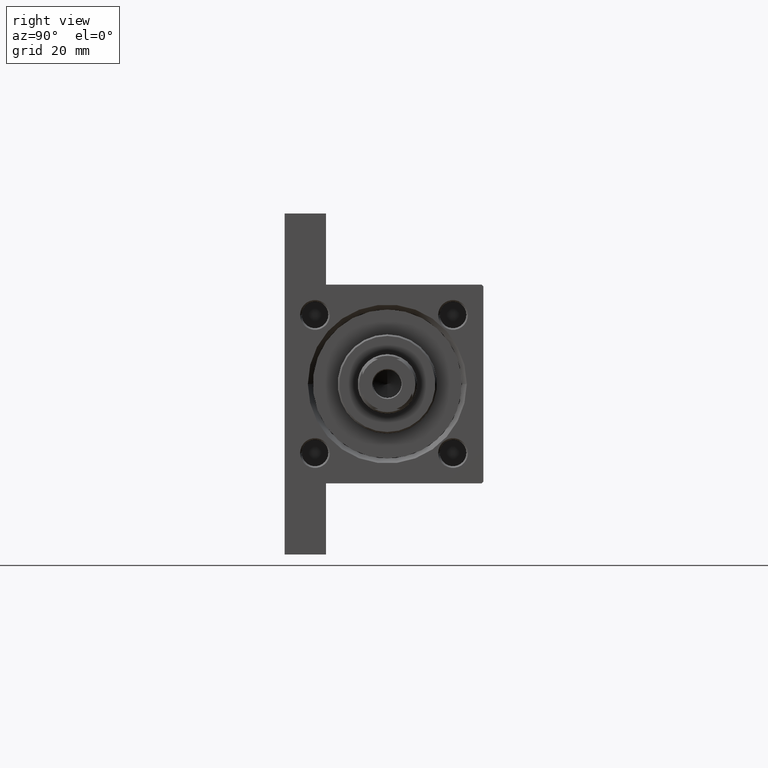
[diagram: clean part render]
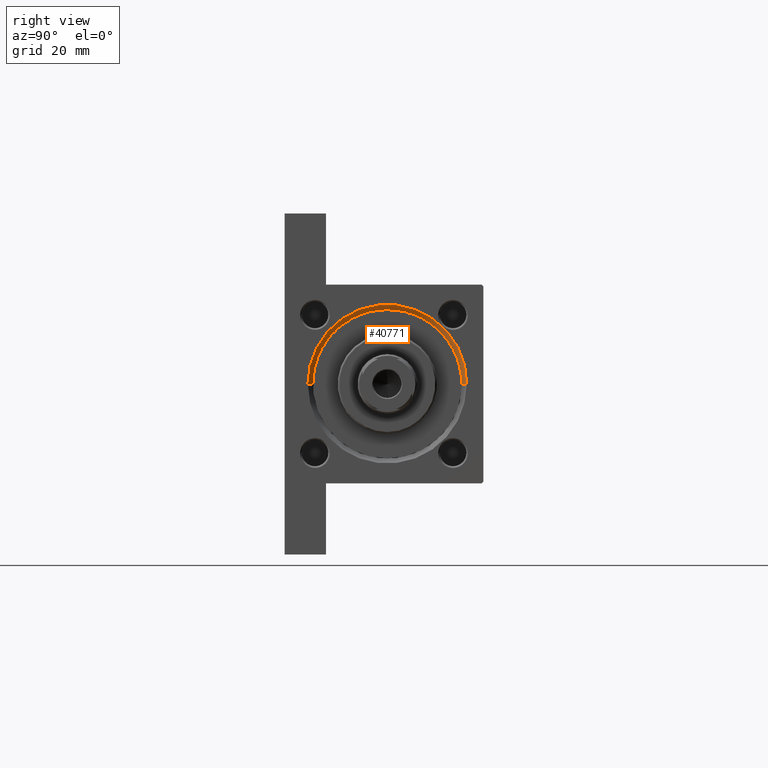
[diagram: same view with one face highlighted and labeled with its STEP entity id]
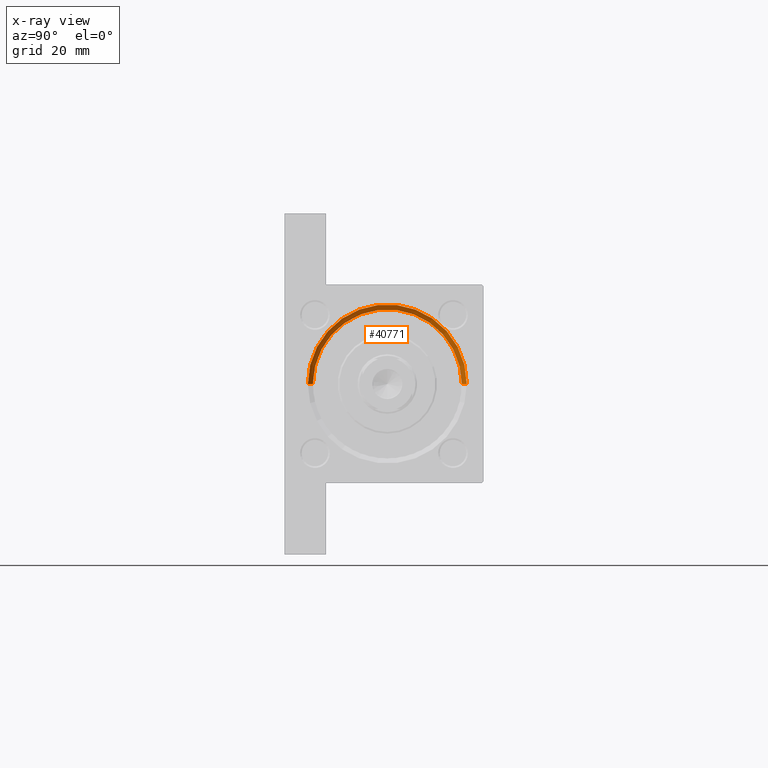
[diagram: x-ray of the same camera — body ghosted, the highlighted face saturated]
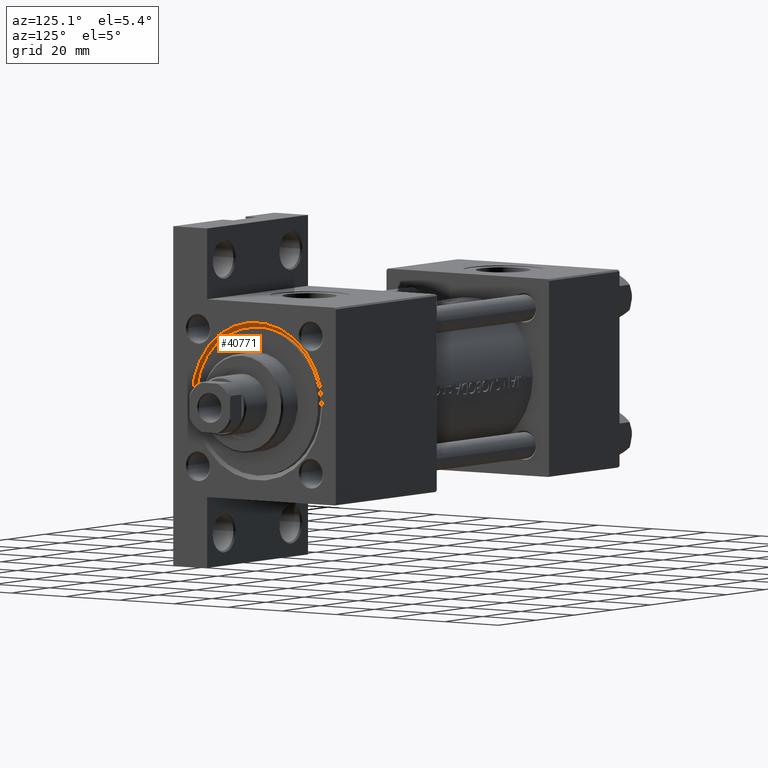
[diagram: same view with one face highlighted and labeled with its STEP entity id]
A machine part, right view. The second image highlights one B-rep face of the part: STEP entity #40771.
The next image is the same camera in x-ray: the body ghosted, the highlighted face saturated — about 0% of this face is hidden behind the body in this view.
A second angle (auxiliary view) of the same face is appended — the face is thin or edge-on in the first view.
In plain terms, the highlighted conical surface has half-angle 45 deg.
Its self-contained STEP definition (entity closure, byte-faithful):
#240 = EDGE_LOOP ( 'NONE', ( #13842, #23593, #32434, #40875 ) ) ;
#786 = CARTESIAN_POINT ( 'NONE',  ( 149.0000000000000000, 0.000000000000000000, -23.00000000000000355 ) ) ;
#3054 = DIRECTION ( 'NONE',  ( 1.000000000000000000, 0.000000000000000000, 0.000000000000000000 ) ) ;
#3774 = DIRECTION ( 'NONE',  ( 0.7071067811865524577, 0.000000000000000000, -0.7071067811865426878 ) ) ;
#6086 = VECTOR ( 'NONE', #3774, 1000.000000000000000 ) ;
#7476 = CARTESIAN_POINT ( 'NONE',  ( 147.4999999999999716, 0.000000000000000000, -21.49999999999999645 ) ) ;
#7496 = CARTESIAN_POINT ( 'NONE',  ( 147.4999999999999716, 2.755455298081545172E-15, 23.50000000000001066 ) ) ;
#11749 = EDGE_CURVE ( 'NONE', #27604, #27494, #43042, .T. ) ;
#12311 = CARTESIAN_POINT ( 'NONE',  ( 147.4999999999999716, 2.755455298081545172E-15, 23.50000000000001066 ) ) ;
#13842 = ORIENTED_EDGE ( 'NONE', *, *, #11749, .F. ) ;
#16446 = EDGE_CURVE ( 'NONE', #27604, #39741, #41748, .T. ) ;
#17125 = CARTESIAN_POINT ( 'NONE',  ( 149.0000000000000000, 2.939152317953649472E-15, 25.00000000000001776 ) ) ;
#17756 = VECTOR ( 'NONE', #22536, 1000.000000000000000 ) ;
#18105 = DIRECTION ( 'NONE',  ( 0.000000000000000000, 0.000000000000000000, -1.000000000000000000 ) ) ;
#21538 = CARTESIAN_POINT ( 'NONE',  ( 147.4999999999999716, 0.000000000000000000, 1.000000000000007772 ) ) ;
#22336 = DIRECTION ( 'NONE',  ( 1.000000000000000000, 0.000000000000000000, 0.000000000000000000 ) ) ;
#22536 = DIRECTION ( 'NONE',  ( 0.7071067811865524577, 8.659560562354873694E-17, 0.7071067811865426878 ) ) ;
#22989 = VERTEX_POINT ( 'NONE', #786 ) ;
#23593 = ORIENTED_EDGE ( 'NONE', *, *, #16446, .T. ) ;
#26203 = LINE ( 'NONE', #7476, #6086 ) ;
#27001 = DIRECTION ( 'NONE',  ( 0.000000000000000000, 0.000000000000000000, 1.000000000000000000 ) ) ;
#27494 = VERTEX_POINT ( 'NONE', #30059 ) ;
#27604 = VERTEX_POINT ( 'NONE', #12311 ) ;
#30059 = CARTESIAN_POINT ( 'NONE',  ( 147.4999999999999716, 0.000000000000000000, -21.49999999999999645 ) ) ;
#31273 = CONICAL_SURFACE ( 'NONE', #32852, 22.50000000000000355, 0.7853981633974415066 ) ;
#32125 = AXIS2_PLACEMENT_3D ( 'NONE', #38367, #37878, #27001 ) ;
#32434 = ORIENTED_EDGE ( 'NONE', *, *, #45580, .F. ) ;
#32852 = AXIS2_PLACEMENT_3D ( 'NONE', #21538, #3054, #18105 ) ;
#32923 = CIRCLE ( 'NONE', #32125, 24.00000000000001066 ) ;
#33581 = AXIS2_PLACEMENT_3D ( 'NONE', #36904, #22336, #37642 ) ;
#36904 = CARTESIAN_POINT ( 'NONE',  ( 147.4999999999999716, 0.000000000000000000, 1.000000000000007772 ) ) ;
#37079 = FACE_OUTER_BOUND ( 'NONE', #240, .T. ) ;
#37642 = DIRECTION ( 'NONE',  ( 0.000000000000000000, 0.000000000000000000, 1.000000000000000000 ) ) ;
#37878 = DIRECTION ( 'NONE',  ( -1.000000000000000000, 0.000000000000000000, -0.000000000000000000 ) ) ;
#38367 = CARTESIAN_POINT ( 'NONE',  ( 149.0000000000000000, 0.000000000000000000, 1.000000000000007772 ) ) ;
#39741 = VERTEX_POINT ( 'NONE', #17125 ) ;
#40771 = ADVANCED_FACE ( 'NONE', ( #37079 ), #31273, .F. ) ;
#40875 = ORIENTED_EDGE ( 'NONE', *, *, #45083, .F. ) ;
#41748 = LINE ( 'NONE', #7496, #17756 ) ;
#43042 = CIRCLE ( 'NONE', #33581, 22.50000000000000355 ) ;
#45083 = EDGE_CURVE ( 'NONE', #27494, #22989, #26203, .T. ) ;
#45580 = EDGE_CURVE ( 'NONE', #22989, #39741, #32923, .T. ) ;